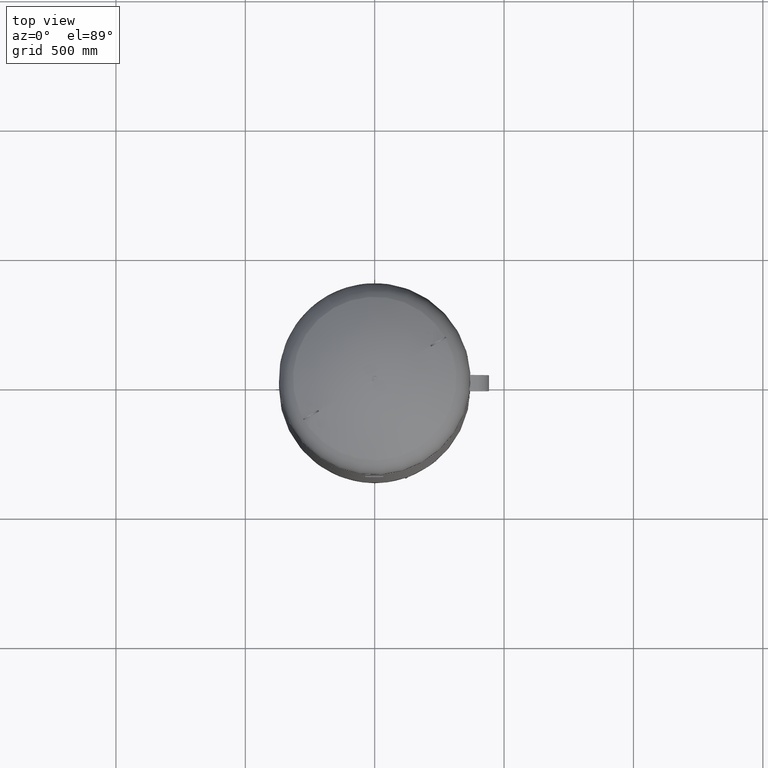
[diagram: clean part render]
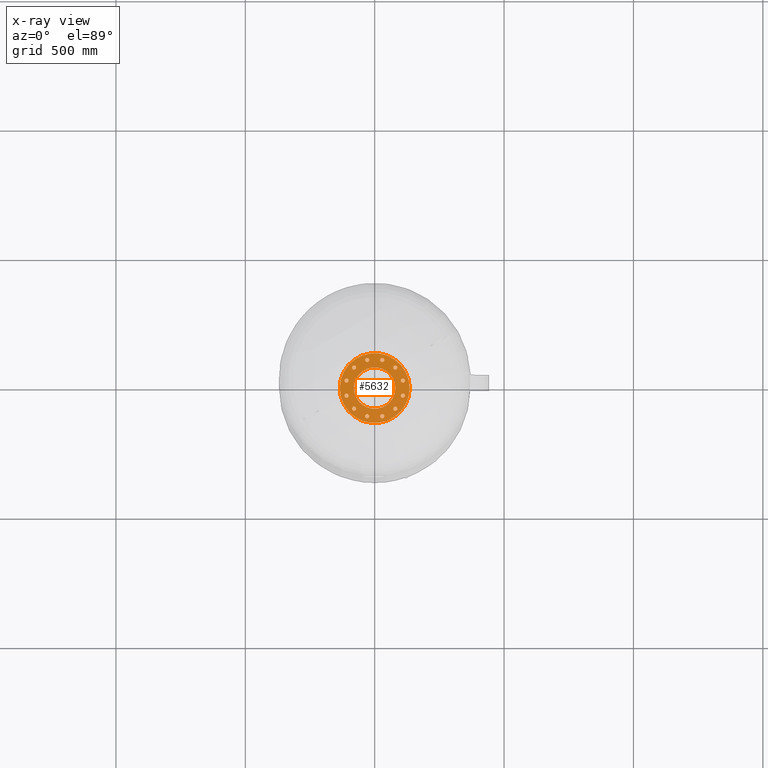
[diagram: x-ray — body ghosted, one internal face saturated and labeled with its STEP entity id]
A machine part, top view, then the same camera in x-ray: the body is ghosted and one INTERNAL B-rep face — a face not visible from any outside direction — is saturated and labeled: STEP entity #5632.
In plain terms, the highlighted planar face has unit normal (0, 0, 1).
Its self-contained STEP definition (entity closure, byte-faithful):
#3082=CARTESIAN_POINT('',(80.0,-4.714890E-015,340.0));
#3083=VERTEX_POINT('',#3082);
#3092=CARTESIAN_POINT('',(-80.0,-1.451174E-014,340.0));
#3093=VERTEX_POINT('',#3092);
#3094=CARTESIAN_POINT('',(0.0,-4.714890E-015,340.0));
#3095=DIRECTION('',(0.0,0.0,1.0));
#3096=DIRECTION('',(1.0,0.0,0.0));
#3097=AXIS2_PLACEMENT_3D('',#3094,#3095,#3096);
#3098=CIRCLE('',#3097,80.0);
#3099=EDGE_CURVE('',#3083,#3093,#3098,.T.);
#3124=CARTESIAN_POINT('',(135.0,-4.714890E-015,340.0));
#3125=VERTEX_POINT('',#3124);
#3134=CARTESIAN_POINT('',(-135.0,-2.124708E-014,340.0));
#3135=VERTEX_POINT('',#3134);
#3136=CARTESIAN_POINT('',(0.0,-4.714890E-015,340.0));
#3137=DIRECTION('',(0.0,0.0,1.0));
#3138=DIRECTION('',(1.0,0.0,0.0));
#3139=AXIS2_PLACEMENT_3D('',#3136,#3137,#3138);
#3140=CIRCLE('',#3139,135.0);
#3141=EDGE_CURVE('',#3135,#3125,#3140,.T.);
#3210=CARTESIAN_POINT('',(-87.549512883486543,79.549512883486713,340.0));
#3211=VERTEX_POINT('',#3210);
#3227=CARTESIAN_POINT('',(-71.549512883486543,79.549512883486713,340.0));
#3228=VERTEX_POINT('',#3227);
#3235=CARTESIAN_POINT('',(-79.549512883486543,79.549512883486713,340.0));
#3236=DIRECTION('',(0.0,0.0,-1.0));
#3237=DIRECTION('',(-1.0,0.0,0.0));
#3238=AXIS2_PLACEMENT_3D('',#3235,#3236,#3237);
#3239=CIRCLE('',#3238,8.0);
#3240=EDGE_CURVE('',#3211,#3228,#3239,.T.);
#3330=CARTESIAN_POINT('',(-115.594858687795720,25.117142574033711,340.0));
#3331=VERTEX_POINT('',#3330);
#3345=CARTESIAN_POINT('',(-101.738452227244690,33.117142574033714,340.0));
#3346=VERTEX_POINT('',#3345);
#3353=CARTESIAN_POINT('',(-108.666655457520210,29.117142574033714,340.0));
#3354=DIRECTION('',(2.651438E-017,1.530808E-017,-1.000000000000000));
#3355=DIRECTION('',(-0.866025403784439,-0.500000000000000,-3.061617E-017));
#3356=AXIS2_PLACEMENT_3D('',#3353,#3354,#3355);
#3357=CIRCLE('',#3356,8.0);
#3358=EDGE_CURVE('',#3331,#3346,#3357,.T.);
#3452=CARTESIAN_POINT('',(-112.666655457520280,-36.045345804308987,340.0));
#3453=VERTEX_POINT('',#3452);
#3467=CARTESIAN_POINT('',(-104.666655457520280,-22.188939343757969,340.0));
#3468=VERTEX_POINT('',#3467);
#3475=CARTESIAN_POINT('',(-108.666655457520280,-29.117142574033476,340.0));
#3476=DIRECTION('',(2.651438E-017,4.592425E-017,-1.0));
#3477=DIRECTION('',(-0.500000000000000,-0.866025403784439,-5.302876E-017));
#3478=AXIS2_PLACEMENT_3D('',#3475,#3476,#3477);
#3479=CIRCLE('',#3478,8.0);
#3480=EDGE_CURVE('',#3453,#3468,#3479,.T.);
#3574=CARTESIAN_POINT('',(-79.549512883486713,-87.549512883486543,340.0));
#3575=VERTEX_POINT('',#3574);
#3589=CARTESIAN_POINT('',(-79.549512883486713,-71.549512883486543,340.0));
#3590=VERTEX_POINT('',#3589);
#3597=CARTESIAN_POINT('',(-79.549512883486713,-79.549512883486543,340.0));
#3598=DIRECTION('',(0.0,0.0,-1.0));
#3599=DIRECTION('',(0.0,-1.0,0.0));
#3600=AXIS2_PLACEMENT_3D('',#3597,#3598,#3599);
#3601=CIRCLE('',#3600,8.0);
#3602=EDGE_CURVE('',#3575,#3590,#3601,.T.);
#3696=CARTESIAN_POINT('',(-25.117142574033732,-115.594858687795710,340.0));
#3697=VERTEX_POINT('',#3696);
#3711=CARTESIAN_POINT('',(-33.117142574033728,-101.738452227244680,340.0));
#3712=VERTEX_POINT('',#3711);
#3719=CARTESIAN_POINT('',(-29.117142574033732,-108.666655457520190,340.0));
#3720=DIRECTION('',(-2.651438E-017,4.592425E-017,-1.000000000000000));
#3721=DIRECTION('',(0.500000000000000,-0.866025403784439,-5.302876E-017));
#3722=AXIS2_PLACEMENT_3D('',#3719,#3720,#3721);
#3723=CIRCLE('',#3722,8.0);
#3724=EDGE_CURVE('',#3697,#3712,#3723,.T.);
#3818=CARTESIAN_POINT('',(36.045345804308951,-112.666655457520280,340.0));
#3819=VERTEX_POINT('',#3818);
#3833=CARTESIAN_POINT('',(22.188939343757930,-104.666655457520280,340.0));
#3834=VERTEX_POINT('',#3833);
#3841=CARTESIAN_POINT('',(29.117142574033444,-108.666655457520280,340.0));
#3842=DIRECTION('',(-2.651438E-017,1.530808E-017,-1.000000000000000));
#3843=DIRECTION('',(0.866025403784439,-0.500000000000000,-3.061617E-017));
#3844=AXIS2_PLACEMENT_3D('',#3841,#3842,#3843);
#3845=CIRCLE('',#3844,8.0);
#3846=EDGE_CURVE('',#3819,#3834,#3845,.T.);
#3940=CARTESIAN_POINT('',(87.549512883486528,-79.549512883486727,340.0));
#3941=VERTEX_POINT('',#3940);
#3955=CARTESIAN_POINT('',(71.549512883486528,-79.549512883486727,340.0));
#3956=VERTEX_POINT('',#3955);
#3963=CARTESIAN_POINT('',(79.549512883486528,-79.549512883486727,340.0));
#3964=DIRECTION('',(0.0,0.0,-1.0));
#3965=DIRECTION('',(1.0,0.0,0.0));
#3966=AXIS2_PLACEMENT_3D('',#3963,#3964,#3965);
#3967=CIRCLE('',#3966,8.0);
#3968=EDGE_CURVE('',#3941,#3956,#3967,.T.);
#4062=CARTESIAN_POINT('',(115.594858687795710,-25.117142574033753,340.0));
#4063=VERTEX_POINT('',#4062);
#4077=CARTESIAN_POINT('',(101.738452227244680,-33.117142574033750,340.0));
#4078=VERTEX_POINT('',#4077);
#4085=CARTESIAN_POINT('',(108.666655457520190,-29.117142574033750,340.0));
#4086=DIRECTION('',(2.651438E-017,1.530808E-017,-1.000000000000000));
#4087=DIRECTION('',(0.866025403784439,0.500000000000000,3.061617E-017));
#4088=AXIS2_PLACEMENT_3D('',#4085,#4086,#4087);
#4089=CIRCLE('',#4088,8.0);
#4090=EDGE_CURVE('',#4063,#4078,#4089,.T.);
#4184=CARTESIAN_POINT('',(112.666655457520260,36.045345804308930,340.0));
#4185=VERTEX_POINT('',#4184);
#4199=CARTESIAN_POINT('',(104.666655457520250,22.188939343757916,340.0));
#4200=VERTEX_POINT('',#4199);
#4207=CARTESIAN_POINT('',(108.666655457520260,29.117142574033423,340.0));
#4208=DIRECTION('',(2.651438E-017,4.592425E-017,-1.0));
#4209=DIRECTION('',(0.500000000000000,0.866025403784438,5.302876E-017));
#4210=AXIS2_PLACEMENT_3D('',#4207,#4208,#4209);
#4211=CIRCLE('',#4210,8.0);
#4212=EDGE_CURVE('',#4185,#4200,#4211,.T.);
#4306=CARTESIAN_POINT('',(79.549512883486727,87.549512883486528,340.0));
#4307=VERTEX_POINT('',#4306);
#4321=CARTESIAN_POINT('',(79.549512883486727,71.549512883486528,340.0));
#4322=VERTEX_POINT('',#4321);
#4329=CARTESIAN_POINT('',(79.549512883486727,79.549512883486528,340.0));
#4330=DIRECTION('',(0.0,0.0,-1.0));
#4331=DIRECTION('',(0.0,1.0,0.0));
#4332=AXIS2_PLACEMENT_3D('',#4329,#4330,#4331);
#4333=CIRCLE('',#4332,8.000000000000002);
#4334=EDGE_CURVE('',#4307,#4322,#4333,.T.);
#4428=CARTESIAN_POINT('',(25.117142574033803,115.594858687795680,340.0));
#4429=VERTEX_POINT('',#4428);
#4443=CARTESIAN_POINT('',(33.117142574033792,101.738452227244660,340.0));
#4444=VERTEX_POINT('',#4443);
#4451=CARTESIAN_POINT('',(29.117142574033799,108.666655457520160,340.0));
#4452=DIRECTION('',(-2.651438E-017,4.592425E-017,-1.0));
#4453=DIRECTION('',(-0.499999999999999,0.866025403784439,5.302876E-017));
#4454=AXIS2_PLACEMENT_3D('',#4451,#4452,#4453);
#4455=CIRCLE('',#4454,8.0);
#4456=EDGE_CURVE('',#4429,#4444,#4455,.T.);
#4550=CARTESIAN_POINT('',(-36.045345804308937,112.666655457520260,340.0));
#4551=VERTEX_POINT('',#4550);
#4565=CARTESIAN_POINT('',(-22.188939343757919,104.666655457520250,340.0));
#4566=VERTEX_POINT('',#4565);
#4573=CARTESIAN_POINT('',(-29.117142574033426,108.666655457520260,340.0));
#4574=DIRECTION('',(-2.651438E-017,1.530808E-017,-1.0));
#4575=DIRECTION('',(-0.866025403784438,0.500000000000000,3.061617E-017));
#4576=AXIS2_PLACEMENT_3D('',#4573,#4574,#4575);
#4577=CIRCLE('',#4576,8.0);
#4578=EDGE_CURVE('',#4551,#4566,#4577,.T.);
#4731=CARTESIAN_POINT('',(-29.117142574033426,108.666655457520260,340.0));
#4732=DIRECTION('',(-2.651438E-017,1.530808E-017,-1.0));
#4733=DIRECTION('',(-0.866025403784438,0.500000000000000,3.061617E-017));
#4734=AXIS2_PLACEMENT_3D('',#4731,#4732,#4733);
#4735=CIRCLE('',#4734,8.0);
#4736=EDGE_CURVE('',#4566,#4551,#4735,.T.);
#4801=CARTESIAN_POINT('',(29.117142574033799,108.666655457520160,340.0));
#4802=DIRECTION('',(-2.651438E-017,4.592425E-017,-1.0));
#4803=DIRECTION('',(-0.499999999999999,0.866025403784439,5.302876E-017));
#4804=AXIS2_PLACEMENT_3D('',#4801,#4802,#4803);
#4805=CIRCLE('',#4804,8.0);
#4806=EDGE_CURVE('',#4444,#4429,#4805,.T.);
#4871=CARTESIAN_POINT('',(79.549512883486727,79.549512883486528,340.0));
#4872=DIRECTION('',(0.0,0.0,-1.0));
#4873=DIRECTION('',(0.0,1.0,0.0));
#4874=AXIS2_PLACEMENT_3D('',#4871,#4872,#4873);
#4875=CIRCLE('',#4874,8.000000000000002);
#4876=EDGE_CURVE('',#4322,#4307,#4875,.T.);
#4941=CARTESIAN_POINT('',(108.666655457520260,29.117142574033423,340.0));
#4942=DIRECTION('',(2.651438E-017,4.592425E-017,-1.0));
#4943=DIRECTION('',(0.500000000000000,0.866025403784438,5.302876E-017));
#4944=AXIS2_PLACEMENT_3D('',#4941,#4942,#4943);
#4945=CIRCLE('',#4944,8.0);
#4946=EDGE_CURVE('',#4200,#4185,#4945,.T.);
#5011=CARTESIAN_POINT('',(108.666655457520190,-29.117142574033750,340.0));
#5012=DIRECTION('',(2.651438E-017,1.530808E-017,-1.000000000000000));
#5013=DIRECTION('',(0.866025403784439,0.500000000000000,3.061617E-017));
#5014=AXIS2_PLACEMENT_3D('',#5011,#5012,#5013);
#5015=CIRCLE('',#5014,8.0);
#5016=EDGE_CURVE('',#4078,#4063,#5015,.T.);
#5081=CARTESIAN_POINT('',(79.549512883486528,-79.549512883486727,340.0));
#5082=DIRECTION('',(0.0,0.0,-1.0));
#5083=DIRECTION('',(1.0,0.0,0.0));
#5084=AXIS2_PLACEMENT_3D('',#5081,#5082,#5083);
#5085=CIRCLE('',#5084,8.0);
#5086=EDGE_CURVE('',#3956,#3941,#5085,.T.);
#5151=CARTESIAN_POINT('',(29.117142574033444,-108.666655457520280,340.0));
#5152=DIRECTION('',(-2.651438E-017,1.530808E-017,-1.000000000000000));
#5153=DIRECTION('',(0.866025403784439,-0.500000000000000,-3.061617E-017));
#5154=AXIS2_PLACEMENT_3D('',#5151,#5152,#5153);
#5155=CIRCLE('',#5154,8.0);
#5156=EDGE_CURVE('',#3834,#3819,#5155,.T.);
#5221=CARTESIAN_POINT('',(-29.117142574033732,-108.666655457520190,340.0));
#5222=DIRECTION('',(-2.651438E-017,4.592425E-017,-1.000000000000000));
#5223=DIRECTION('',(0.500000000000000,-0.866025403784439,-5.302876E-017));
#5224=AXIS2_PLACEMENT_3D('',#5221,#5222,#5223);
#5225=CIRCLE('',#5224,8.0);
#5226=EDGE_CURVE('',#3712,#3697,#5225,.T.);
#5291=CARTESIAN_POINT('',(-79.549512883486713,-79.549512883486543,340.0));
#5292=DIRECTION('',(0.0,0.0,-1.0));
#5293=DIRECTION('',(0.0,-1.0,0.0));
#5294=AXIS2_PLACEMENT_3D('',#5291,#5292,#5293);
#5295=CIRCLE('',#5294,8.0);
#5296=EDGE_CURVE('',#3590,#3575,#5295,.T.);
#5361=CARTESIAN_POINT('',(-108.666655457520280,-29.117142574033476,340.0));
#5362=DIRECTION('',(2.651438E-017,4.592425E-017,-1.0));
#5363=DIRECTION('',(-0.500000000000000,-0.866025403784439,-5.302876E-017));
#5364=AXIS2_PLACEMENT_3D('',#5361,#5362,#5363);
#5365=CIRCLE('',#5364,8.0);
#5366=EDGE_CURVE('',#3468,#3453,#5365,.T.);
#5431=CARTESIAN_POINT('',(-108.666655457520210,29.117142574033714,340.0));
#5432=DIRECTION('',(2.651438E-017,1.530808E-017,-1.000000000000000));
#5433=DIRECTION('',(-0.866025403784439,-0.500000000000000,-3.061617E-017));
#5434=AXIS2_PLACEMENT_3D('',#5431,#5432,#5433);
#5435=CIRCLE('',#5434,8.0);
#5436=EDGE_CURVE('',#3346,#3331,#5435,.T.);
#5495=CARTESIAN_POINT('',(-79.549512883486543,79.549512883486713,340.0));
#5496=DIRECTION('',(0.0,0.0,-1.0));
#5497=DIRECTION('',(-1.0,0.0,0.0));
#5498=AXIS2_PLACEMENT_3D('',#5495,#5496,#5497);
#5499=CIRCLE('',#5498,8.0);
#5500=EDGE_CURVE('',#3228,#3211,#5499,.T.);
#5555=CARTESIAN_POINT('',(0.0,-4.714890E-015,340.0));
#5556=DIRECTION('',(0.0,0.0,1.0));
#5557=DIRECTION('',(1.0,0.0,0.0));
#5558=AXIS2_PLACEMENT_3D('',#5555,#5556,#5557);
#5559=CIRCLE('',#5558,135.0);
#5560=EDGE_CURVE('',#3125,#3135,#5559,.T.);
#5565=CARTESIAN_POINT('',(81.250000000000000,-4.714890E-015,340.0));
#5566=DIRECTION('',(0.0,0.0,1.0));
#5567=DIRECTION('',(0.0,-1.0,0.0));
#5568=AXIS2_PLACEMENT_3D('',#5565,#5566,#5567);
#5569=PLANE('',#5568);
#5570=ORIENTED_EDGE('',*,*,#5560,.T.);
#5571=ORIENTED_EDGE('',*,*,#3141,.T.);
#5572=EDGE_LOOP('',(#5570,#5571));
#5573=FACE_OUTER_BOUND('',#5572,.T.);
#5574=ORIENTED_EDGE('',*,*,#4736,.T.);
#5575=ORIENTED_EDGE('',*,*,#4578,.T.);
#5576=EDGE_LOOP('',(#5574,#5575));
#5577=FACE_BOUND('',#5576,.T.);
#5578=ORIENTED_EDGE('',*,*,#4806,.T.);
#5579=ORIENTED_EDGE('',*,*,#4456,.T.);
#5580=EDGE_LOOP('',(#5578,#5579));
#5581=FACE_BOUND('',#5580,.T.);
#5582=ORIENTED_EDGE('',*,*,#4876,.T.);
#5583=ORIENTED_EDGE('',*,*,#4334,.T.);
#5584=EDGE_LOOP('',(#5582,#5583));
#5585=FACE_BOUND('',#5584,.T.);
#5586=ORIENTED_EDGE('',*,*,#4946,.T.);
#5587=ORIENTED_EDGE('',*,*,#4212,.T.);
#5588=EDGE_LOOP('',(#5586,#5587));
#5589=FACE_BOUND('',#5588,.T.);
#5590=ORIENTED_EDGE('',*,*,#5016,.T.);
#5591=ORIENTED_EDGE('',*,*,#4090,.T.);
#5592=EDGE_LOOP('',(#5590,#5591));
#5593=FACE_BOUND('',#5592,.T.);
#5594=ORIENTED_EDGE('',*,*,#5086,.T.);
#5595=ORIENTED_EDGE('',*,*,#3968,.T.);
#5596=EDGE_LOOP('',(#5594,#5595));
#5597=FACE_BOUND('',#5596,.T.);
#5598=ORIENTED_EDGE('',*,*,#5156,.T.);
#5599=ORIENTED_EDGE('',*,*,#3846,.T.);
#5600=EDGE_LOOP('',(#5598,#5599));
#5601=FACE_BOUND('',#5600,.T.);
#5602=ORIENTED_EDGE('',*,*,#5226,.T.);
#5603=ORIENTED_EDGE('',*,*,#3724,.T.);
#5604=EDGE_LOOP('',(#5602,#5603));
#5605=FACE_BOUND('',#5604,.T.);
#5606=ORIENTED_EDGE('',*,*,#5296,.T.);
#5607=ORIENTED_EDGE('',*,*,#3602,.T.);
#5608=EDGE_LOOP('',(#5606,#5607));
#5609=FACE_BOUND('',#5608,.T.);
#5610=ORIENTED_EDGE('',*,*,#5366,.T.);
#5611=ORIENTED_EDGE('',*,*,#3480,.T.);
#5612=EDGE_LOOP('',(#5610,#5611));
#5613=FACE_BOUND('',#5612,.T.);
#5614=ORIENTED_EDGE('',*,*,#5436,.T.);
#5615=ORIENTED_EDGE('',*,*,#3358,.T.);
#5616=EDGE_LOOP('',(#5614,#5615));
#5617=FACE_BOUND('',#5616,.T.);
#5618=ORIENTED_EDGE('',*,*,#5500,.T.);
#5619=ORIENTED_EDGE('',*,*,#3240,.T.);
#5620=EDGE_LOOP('',(#5618,#5619));
#5621=FACE_BOUND('',#5620,.T.);
#5622=ORIENTED_EDGE('',*,*,#3099,.F.);
#5623=CARTESIAN_POINT('',(0.0,-4.714890E-015,340.0));
#5624=DIRECTION('',(0.0,0.0,1.0));
#5625=DIRECTION('',(1.0,0.0,0.0));
#5626=AXIS2_PLACEMENT_3D('',#5623,#5624,#5625);
#5627=CIRCLE('',#5626,80.0);
#5628=EDGE_CURVE('',#3093,#3083,#5627,.T.);
#5629=ORIENTED_EDGE('',*,*,#5628,.F.);
#5630=EDGE_LOOP('',(#5622,#5629));
#5631=FACE_BOUND('',#5630,.T.);
#5632=ADVANCED_FACE('',(#5573,#5577,#5581,#5585,#5589,#5593,#5597,#5601,#5605,#5609,#5613,#5617,#5621,#5631),#5569,.T.);